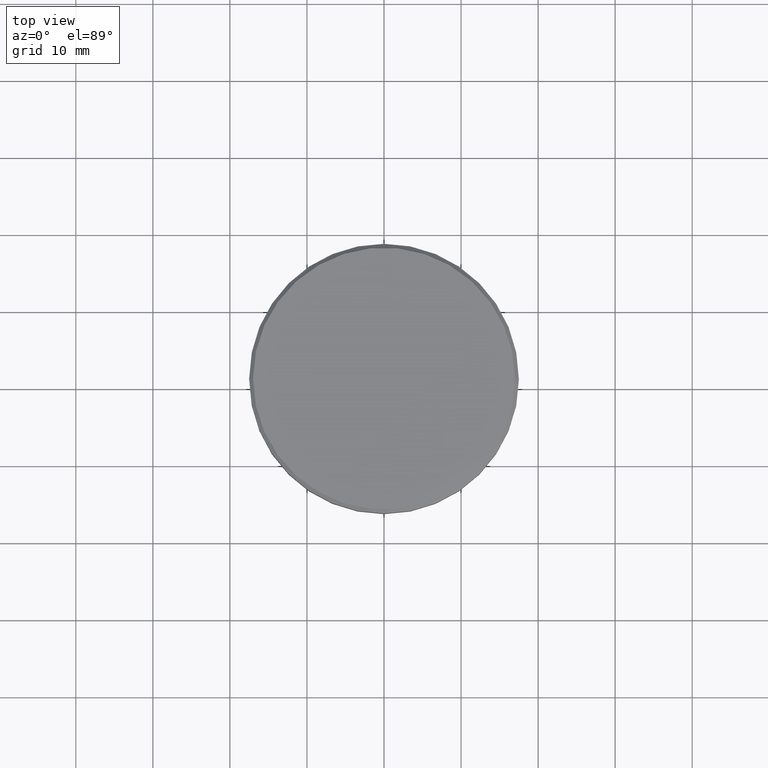
[diagram: clean part render]
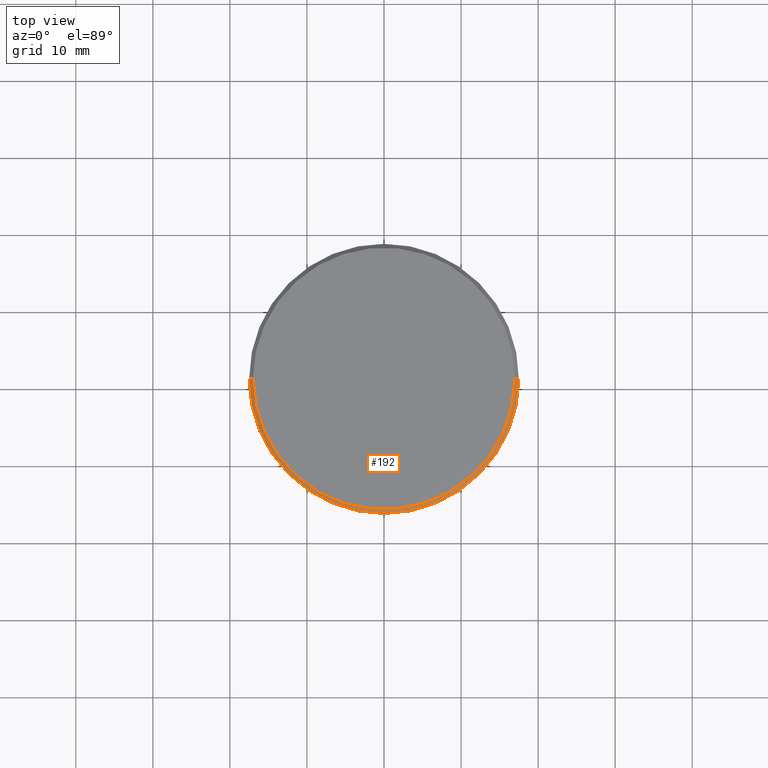
[diagram: same view with one face highlighted and labeled with its STEP entity id]
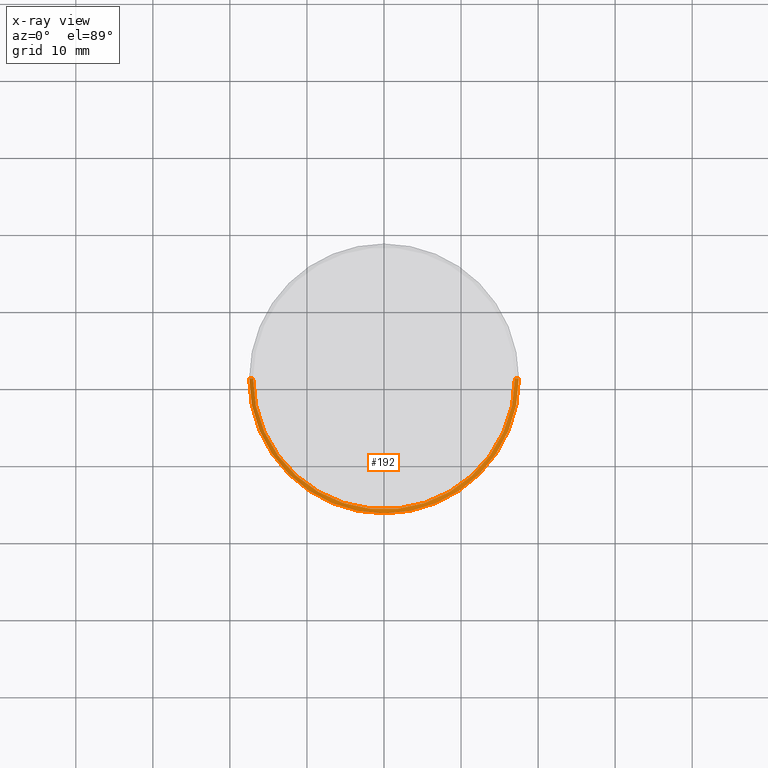
[diagram: x-ray of the same camera — body ghosted, the highlighted face saturated]
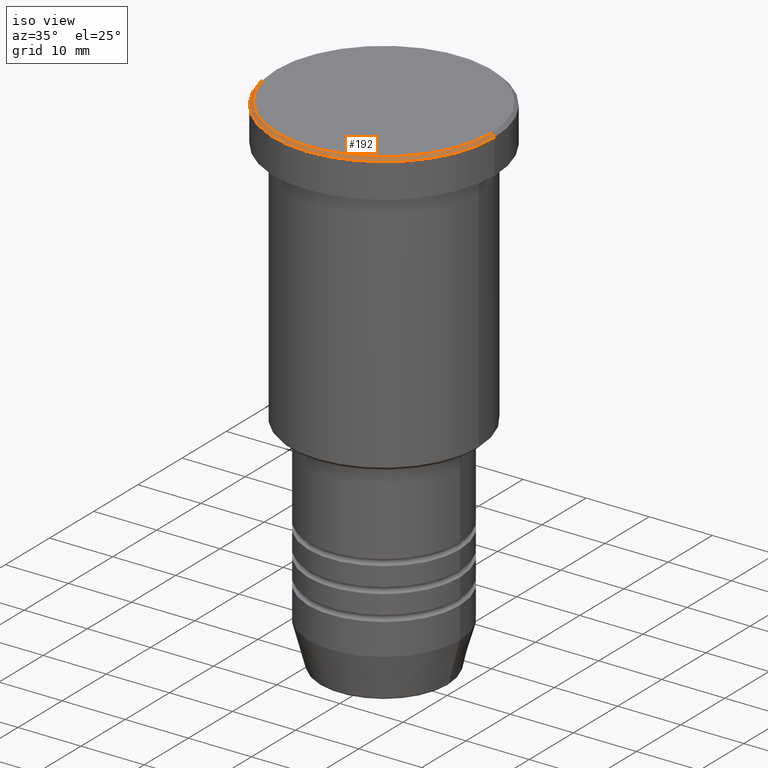
[diagram: same view with one face highlighted and labeled with its STEP entity id]
A machine part, top view. The second image highlights one B-rep face of the part: STEP entity #192.
The next image is the same camera in x-ray: the body ghosted, the highlighted face saturated — about 0% of this face is hidden behind the body in this view.
A second angle (iso view) of the same face is appended — the face is thin or edge-on in the first view.
In plain terms, the highlighted conical surface has half-angle 45 deg.
Its self-contained STEP definition (entity closure, byte-faithful):
#36 = FACE_OUTER_BOUND ( 'NONE', #421, .T. ) ;
#104 = VERTEX_POINT ( 'NONE', #581 ) ;
#110 = DIRECTION ( 'NONE',  ( 1.000000000000000000, 0.000000000000000000, 0.000000000000000000 ) ) ;
#169 = CARTESIAN_POINT ( 'NONE',  ( 17.50000000000000000, 0.000000000000000000, -0.5000000000000142109 ) ) ;
#179 = VECTOR ( 'NONE', #1132, 1000.000000000000000 ) ;
#192 = ADVANCED_FACE ( 'NONE', ( #36 ), #891, .T. ) ;
#194 = LINE ( 'NONE', #382, #580 ) ;
#197 = CIRCLE ( 'NONE', #1083, 17.50000000000000000 ) ;
#218 = VERTEX_POINT ( 'NONE', #169 ) ;
#226 = CARTESIAN_POINT ( 'NONE',  ( 0.000000000000000000, 0.000000000000000000, -0.5000000000000142109 ) ) ;
#237 = DIRECTION ( 'NONE',  ( -0.000000000000000000, -0.000000000000000000, 1.000000000000000000 ) ) ;
#299 = AXIS2_PLACEMENT_3D ( 'NONE', #1055, #237, #424 ) ;
#343 = ORIENTED_EDGE ( 'NONE', *, *, #862, .F. ) ;
#372 = AXIS2_PLACEMENT_3D ( 'NONE', #480, #854, #396 ) ;
#382 = CARTESIAN_POINT ( 'NONE',  ( 17.00000000000000000, 2.081899558550500280E-15, 0.000000000000000000 ) ) ;
#383 = EDGE_CURVE ( 'NONE', #695, #218, #194, .T. ) ;
#396 = DIRECTION ( 'NONE',  ( -1.000000000000000000, 0.000000000000000000, 0.000000000000000000 ) ) ;
#403 = LINE ( 'NONE', #598, #179 ) ;
#421 = EDGE_LOOP ( 'NONE', ( #699, #558, #460, #343 ) ) ;
#424 = DIRECTION ( 'NONE',  ( 1.000000000000000000, 0.000000000000000000, 0.000000000000000000 ) ) ;
#460 = ORIENTED_EDGE ( 'NONE', *, *, #551, .T. ) ;
#465 = CIRCLE ( 'NONE', #299, 17.00000000000000000 ) ;
#480 = CARTESIAN_POINT ( 'NONE',  ( 0.000000000000000000, 0.000000000000000000, 0.000000000000000000 ) ) ;
#551 = EDGE_CURVE ( 'NONE', #104, #770, #403, .T. ) ;
#558 = ORIENTED_EDGE ( 'NONE', *, *, #1113, .F. ) ;
#580 = VECTOR ( 'NONE', #749, 1000.000000000000000 ) ;
#581 = CARTESIAN_POINT ( 'NONE',  ( -17.00000000000000000, 0.000000000000000000, 0.000000000000000000 ) ) ;
#592 = DIRECTION ( 'NONE',  ( 0.000000000000000000, 0.000000000000000000, -1.000000000000000000 ) ) ;
#598 = CARTESIAN_POINT ( 'NONE',  ( -17.00000000000000000, 0.000000000000000000, 0.000000000000000000 ) ) ;
#695 = VERTEX_POINT ( 'NONE', #904 ) ;
#699 = ORIENTED_EDGE ( 'NONE', *, *, #383, .F. ) ;
#749 = DIRECTION ( 'NONE',  ( 0.7071067811865378028, 8.659560562354814529E-17, -0.7071067811865573427 ) ) ;
#770 = VERTEX_POINT ( 'NONE', #1009 ) ;
#854 = DIRECTION ( 'NONE',  ( 0.000000000000000000, 0.000000000000000000, -1.000000000000000000 ) ) ;
#862 = EDGE_CURVE ( 'NONE', #218, #770, #197, .T. ) ;
#891 = CONICAL_SURFACE ( 'NONE', #372, 17.00000000000000000, 0.7853981633974346233 ) ;
#904 = CARTESIAN_POINT ( 'NONE',  ( 17.00000000000000000, 2.112515728529184067E-15, 0.000000000000000000 ) ) ;
#1009 = CARTESIAN_POINT ( 'NONE',  ( -17.50000000000000000, 2.143131898507868248E-15, -0.5000000000000142109 ) ) ;
#1055 = CARTESIAN_POINT ( 'NONE',  ( 0.000000000000000000, 0.000000000000000000, 0.000000000000000000 ) ) ;
#1083 = AXIS2_PLACEMENT_3D ( 'NONE', #226, #592, #110 ) ;
#1113 = EDGE_CURVE ( 'NONE', #104, #695, #465, .T. ) ;
#1132 = DIRECTION ( 'NONE',  ( -0.7071067811865378028, 0.000000000000000000, -0.7071067811865573427 ) ) ;